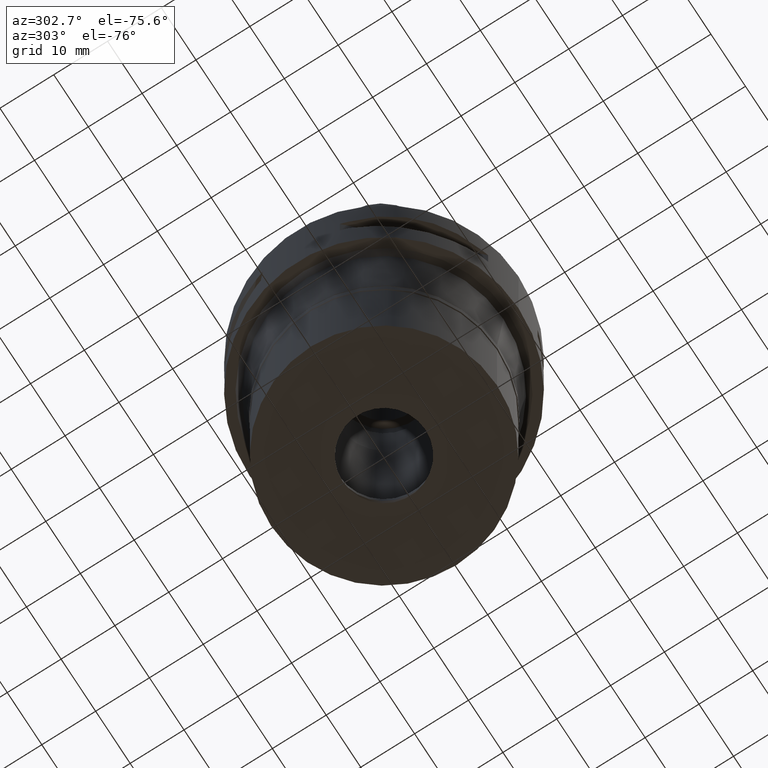
[diagram: clean part render]
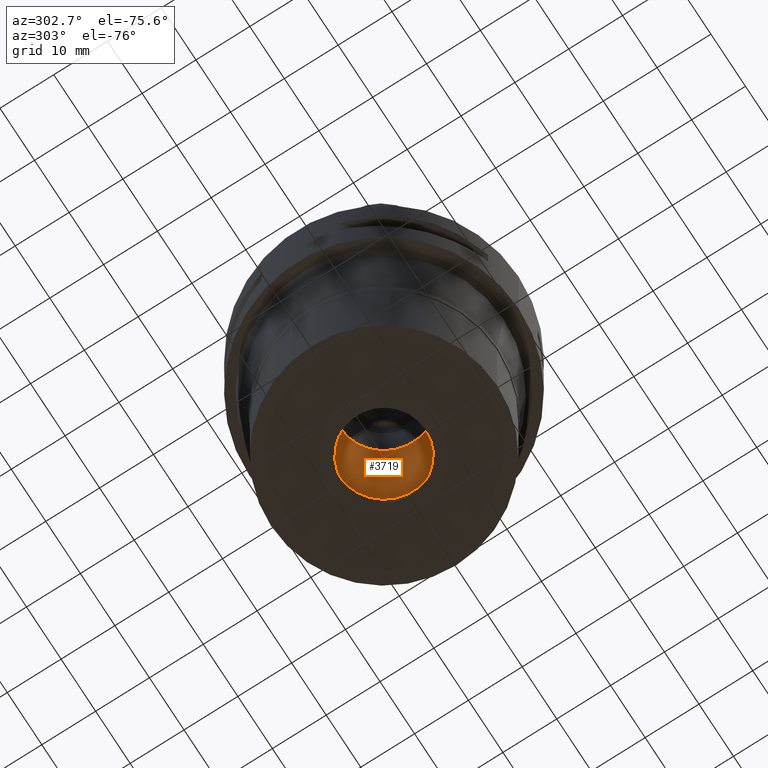
[diagram: same view with one face highlighted and labeled with its STEP entity id]
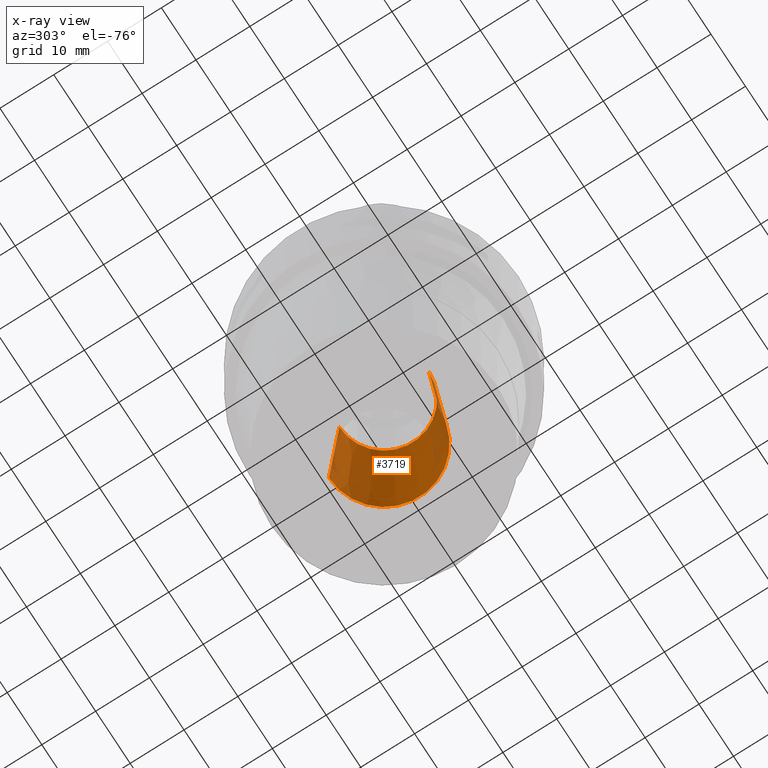
[diagram: x-ray of the same camera — body ghosted, the highlighted face saturated]
A machine part, auxiliary view. The second image highlights one B-rep face of the part: STEP entity #3719.
The next image is the same camera in x-ray: the body ghosted, the highlighted face saturated — about 14% of this face is hidden behind the body in this view.
In plain terms, the highlighted conical surface has half-angle 4 deg.
Its self-contained STEP definition (entity closure, byte-faithful):
#19 = DIRECTION ( 'NONE',  ( 0.0000000000000000000, -1.000000000000000000, 0.0000000000000000000 ) ) ;
#66 = CARTESIAN_POINT ( 'NONE',  ( 0.0000000000000000000, 0.0000000000000000000, -38.55685039971000094 ) ) ;
#376 = CARTESIAN_POINT ( 'NONE',  ( 0.0000000000000000000, -10.25000000000000000, -52.50000000000000000 ) ) ;
#456 = CARTESIAN_POINT ( 'NONE',  ( 0.0000000000000000000, -10.25000000000000000, -52.50000000000000000 ) ) ;
#951 = DIRECTION ( 'NONE',  ( 0.0000000000000000000, -0.06975647374412173585, 0.9975640502598245307 ) ) ;
#1030 = VERTEX_POINT ( 'NONE', #2947 ) ;
#1062 = CIRCLE ( 'NONE', #2311, 10.25000000000000000 ) ;
#1171 = VERTEX_POINT ( 'NONE', #2180 ) ;
#1260 = ORIENTED_EDGE ( 'NONE', *, *, #1828, .F. ) ;
#1315 = EDGE_CURVE ( 'NONE', #4242, #1030, #2619, .T. ) ;
#1354 = DIRECTION ( 'NONE',  ( 0.0000000000000000000, 0.0000000000000000000, -1.000000000000000000 ) ) ;
#1411 = ORIENTED_EDGE ( 'NONE', *, *, #2890, .T. ) ;
#1460 = CARTESIAN_POINT ( 'NONE',  ( 0.0000000000000000000, 0.0000000000000000000, -52.50000000000000000 ) ) ;
#1686 = AXIS2_PLACEMENT_3D ( 'NONE', #3193, #1354, #3535 ) ;
#1696 = AXIS2_PLACEMENT_3D ( 'NONE', #66, #3075, #19 ) ;
#1828 = EDGE_CURVE ( 'NONE', #1171, #1030, #3768, .T. ) ;
#1959 = DIRECTION ( 'NONE',  ( 0.0000000000000000000, 0.06975647374412173585, 0.9975640502598245307 ) ) ;
#1996 = VECTOR ( 'NONE', #951, 1000.000000000000000 ) ;
#2125 = EDGE_CURVE ( 'NONE', #2900, #1171, #4711, .T. ) ;
#2180 = CARTESIAN_POINT ( 'NONE',  ( 0.0000000000000000000, 8.300000000000000711, -24.61370079941000100 ) ) ;
#2311 = AXIS2_PLACEMENT_3D ( 'NONE', #1460, #4394, #3662 ) ;
#2559 = EDGE_LOOP ( 'NONE', ( #1411, #3209, #1260, #3884 ) ) ;
#2619 = LINE ( 'NONE', #456, #4451 ) ;
#2890 = EDGE_CURVE ( 'NONE', #2900, #4242, #1062, .T. ) ;
#2900 = VERTEX_POINT ( 'NONE', #4356 ) ;
#2947 = CARTESIAN_POINT ( 'NONE',  ( 0.0000000000000000000, -8.300000000000000711, -24.61370079941000100 ) ) ;
#3075 = DIRECTION ( 'NONE',  ( 0.0000000000000000000, 0.0000000000000000000, -1.000000000000000000 ) ) ;
#3193 = CARTESIAN_POINT ( 'NONE',  ( 0.0000000000000000000, 0.0000000000000000000, -24.61370079941000100 ) ) ;
#3209 = ORIENTED_EDGE ( 'NONE', *, *, #1315, .T. ) ;
#3535 = DIRECTION ( 'NONE',  ( 0.0000000000000000000, 1.000000000000000000, 0.0000000000000000000 ) ) ;
#3662 = DIRECTION ( 'NONE',  ( 0.0000000000000000000, 1.000000000000000000, 0.0000000000000000000 ) ) ;
#3719 = ADVANCED_FACE ( 'NONE', ( #3780 ), #3933, .F. ) ;
#3768 = CIRCLE ( 'NONE', #1686, 8.300000000000000711 ) ;
#3780 = FACE_OUTER_BOUND ( 'NONE', #2559, .T. ) ;
#3884 = ORIENTED_EDGE ( 'NONE', *, *, #2125, .F. ) ;
#3895 = CARTESIAN_POINT ( 'NONE',  ( 0.0000000000000000000, 10.25000000000000000, -52.50000000000000000 ) ) ;
#3933 = CONICAL_SURFACE ( 'NONE', #1696, 9.275000000000000355, 0.06981317007975955391 ) ;
#4242 = VERTEX_POINT ( 'NONE', #376 ) ;
#4356 = CARTESIAN_POINT ( 'NONE',  ( 0.0000000000000000000, 10.25000000000000000, -52.50000000000000000 ) ) ;
#4394 = DIRECTION ( 'NONE',  ( 0.0000000000000000000, 0.0000000000000000000, -1.000000000000000000 ) ) ;
#4451 = VECTOR ( 'NONE', #1959, 1000.000000000000000 ) ;
#4711 = LINE ( 'NONE', #3895, #1996 ) ;